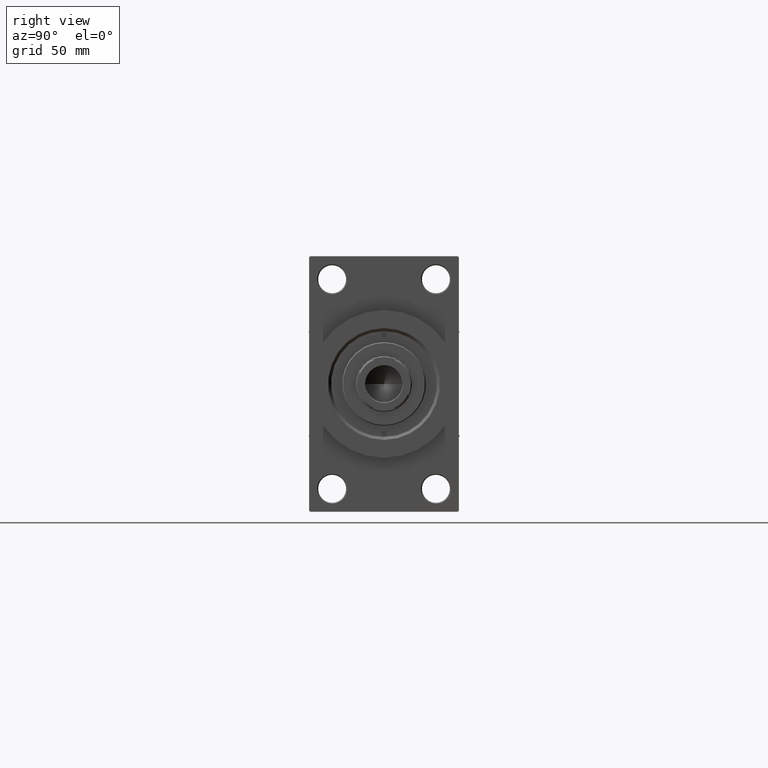
[diagram: clean part render]
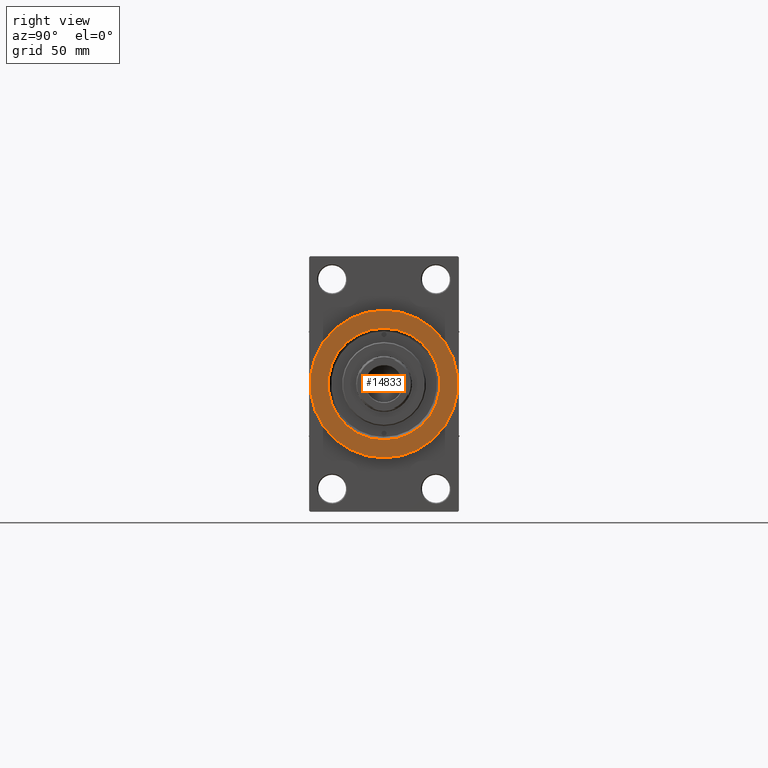
[diagram: same view with one face highlighted and labeled with its STEP entity id]
A machine part, right view. The second image highlights one B-rep face of the part: STEP entity #14833.
In plain terms, the highlighted planar face has unit normal (1, 0, 0).
Its self-contained STEP definition (entity closure, byte-faithful):
#43 = FACE_OUTER_BOUND ( 'NONE', #3142, .T. ) ;
#1481 = EDGE_CURVE ( 'NONE', #30112, #10693, #39905, .T. ) ;
#3142 = EDGE_LOOP ( 'NONE', ( #10868, #3341 ) ) ;
#3341 = ORIENTED_EDGE ( 'NONE', *, *, #22065, .T. ) ;
#3957 = DIRECTION ( 'NONE',  ( 1.000000000000000000, 0.000000000000000000, 0.000000000000000000 ) ) ;
#8859 = AXIS2_PLACEMENT_3D ( 'NONE', #32857, #29269, #36446 ) ;
#10192 = CARTESIAN_POINT ( 'NONE',  ( 294.0000000000000568, 0.000000000000000000, 37.00000000000000000 ) ) ;
#10693 = VERTEX_POINT ( 'NONE', #24132 ) ;
#10868 = ORIENTED_EDGE ( 'NONE', *, *, #13571, .T. ) ;
#12149 = VERTEX_POINT ( 'NONE', #23535 ) ;
#13571 = EDGE_CURVE ( 'NONE', #13631, #12149, #17251, .T. ) ;
#13631 = VERTEX_POINT ( 'NONE', #10192 ) ;
#13719 = CARTESIAN_POINT ( 'NONE',  ( 294.0000000000000568, 0.000000000000000000, 0.000000000000000000 ) ) ;
#14256 = DIRECTION ( 'NONE',  ( 1.000000000000000000, 0.000000000000000000, 0.000000000000000000 ) ) ;
#14833 = ADVANCED_FACE ( 'NONE', ( #21863, #43 ), #32158, .T. ) ;
#14963 = DIRECTION ( 'NONE',  ( 0.000000000000000000, 0.000000000000000000, -1.000000000000000000 ) ) ;
#16605 = DIRECTION ( 'NONE',  ( -1.000000000000000000, -0.000000000000000000, -0.000000000000000000 ) ) ;
#17251 = CIRCLE ( 'NONE', #44023, 37.00000000000000000 ) ;
#18076 = CARTESIAN_POINT ( 'NONE',  ( 294.0000000000000568, 0.000000000000000000, 0.000000000000000000 ) ) ;
#21139 = DIRECTION ( 'NONE',  ( 0.000000000000000000, 0.000000000000000000, -1.000000000000000000 ) ) ;
#21863 = FACE_BOUND ( 'NONE', #46233, .T. ) ;
#22065 = EDGE_CURVE ( 'NONE', #12149, #13631, #26397, .T. ) ;
#22132 = EDGE_CURVE ( 'NONE', #10693, #30112, #37870, .T. ) ;
#22414 = DIRECTION ( 'NONE',  ( 0.000000000000000000, 0.000000000000000000, -1.000000000000000000 ) ) ;
#23057 = AXIS2_PLACEMENT_3D ( 'NONE', #13719, #16605, #21139 ) ;
#23535 = CARTESIAN_POINT ( 'NONE',  ( 294.0000000000000568, 4.531193156845206793E-15, -37.00000000000000000 ) ) ;
#24132 = CARTESIAN_POINT ( 'NONE',  ( 294.0000000000000568, 3.429011037612588881E-15, 27.99999999999999645 ) ) ;
#25747 = DIRECTION ( 'NONE',  ( -1.000000000000000000, -0.000000000000000000, -0.000000000000000000 ) ) ;
#26397 = CIRCLE ( 'NONE', #29432, 37.00000000000000000 ) ;
#29269 = DIRECTION ( 'NONE',  ( 1.000000000000000000, 0.000000000000000000, 0.000000000000000000 ) ) ;
#29432 = AXIS2_PLACEMENT_3D ( 'NONE', #43763, #3957, #22414 ) ;
#29518 = ORIENTED_EDGE ( 'NONE', *, *, #22132, .T. ) ;
#29590 = DIRECTION ( 'NONE',  ( 0.000000000000000000, 0.000000000000000000, -1.000000000000000000 ) ) ;
#30112 = VERTEX_POINT ( 'NONE', #41981 ) ;
#32158 = PLANE ( 'NONE',  #8859 ) ;
#32857 = CARTESIAN_POINT ( 'NONE',  ( 294.0000000000000568, 0.000000000000000000, 0.000000000000000000 ) ) ;
#36326 = AXIS2_PLACEMENT_3D ( 'NONE', #37255, #25747, #29590 ) ;
#36446 = DIRECTION ( 'NONE',  ( 0.000000000000000000, 0.000000000000000000, -1.000000000000000000 ) ) ;
#37255 = CARTESIAN_POINT ( 'NONE',  ( 294.0000000000000568, 0.000000000000000000, 0.000000000000000000 ) ) ;
#37870 = CIRCLE ( 'NONE', #36326, 27.99999999999999645 ) ;
#39905 = CIRCLE ( 'NONE', #23057, 27.99999999999999645 ) ;
#41981 = CARTESIAN_POINT ( 'NONE',  ( 294.0000000000000568, 0.000000000000000000, -27.99999999999999645 ) ) ;
#42359 = ORIENTED_EDGE ( 'NONE', *, *, #1481, .T. ) ;
#43763 = CARTESIAN_POINT ( 'NONE',  ( 294.0000000000000568, 0.000000000000000000, 0.000000000000000000 ) ) ;
#44023 = AXIS2_PLACEMENT_3D ( 'NONE', #18076, #14256, #14963 ) ;
#46233 = EDGE_LOOP ( 'NONE', ( #42359, #29518 ) ) ;